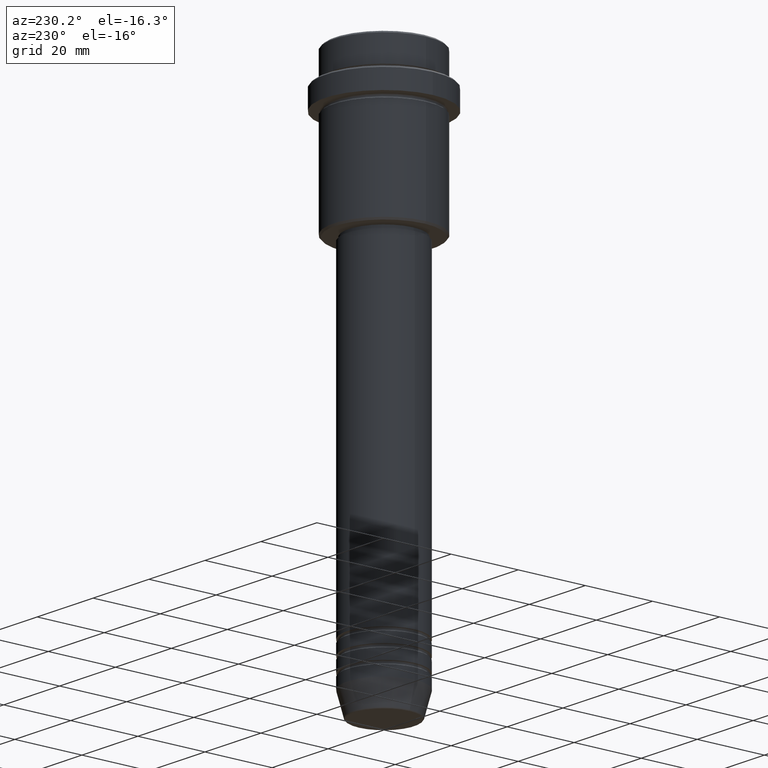
[diagram: clean part render]
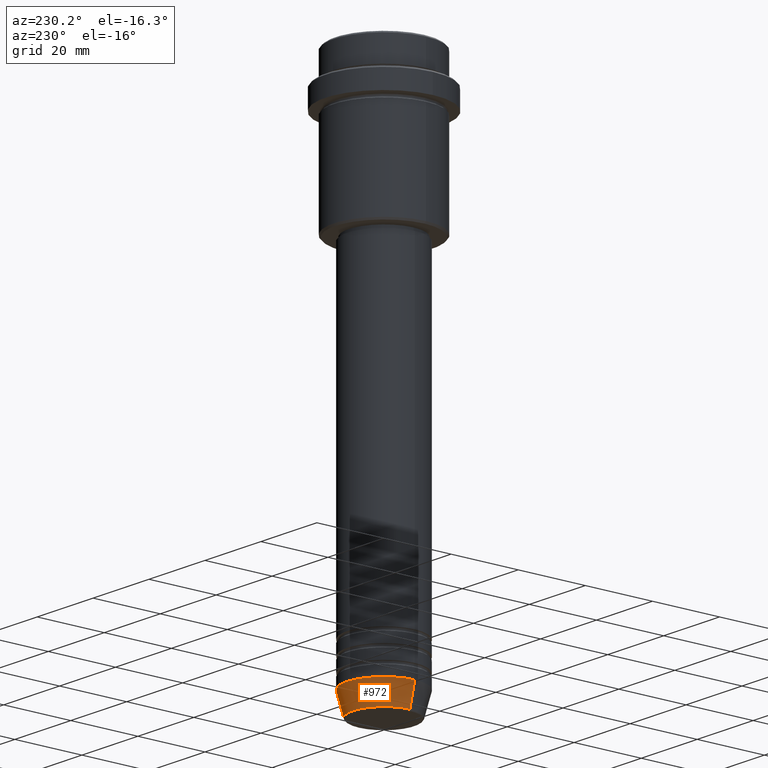
[diagram: same view with one face highlighted and labeled with its STEP entity id]
A machine part, auxiliary view. The second image highlights one B-rep face of the part: STEP entity #972.
In plain terms, the highlighted conical surface has half-angle 15 deg.
Its self-contained STEP definition (entity closure, byte-faithful):
#16 = DIRECTION ( 'NONE',  ( 1.000000000000000000, 0.000000000000000000, 0.000000000000000000 ) ) ;
#85 = ORIENTED_EDGE ( 'NONE', *, *, #982, .T. ) ;
#95 = DIRECTION ( 'NONE',  ( 1.000000000000000000, 0.000000000000000000, 0.000000000000000000 ) ) ;
#101 = LINE ( 'NONE', #989, #518 ) ;
#114 = EDGE_CURVE ( 'NONE', #877, #690, #1114, .T. ) ;
#196 = AXIS2_PLACEMENT_3D ( 'NONE', #295, #1286, #1044 ) ;
#201 = EDGE_LOOP ( 'NONE', ( #85, #1202, #523, #1287 ) ) ;
#217 = CONICAL_SURFACE ( 'NONE', #449, 11.00000000000000000, 0.2617993877991500740 ) ;
#295 = CARTESIAN_POINT ( 'NONE',  ( 0.000000000000000000, 0.000000000000000000, -159.6294095225512137 ) ) ;
#341 = VECTOR ( 'NONE', #633, 1000.000000000000000 ) ;
#344 = CARTESIAN_POINT ( 'NONE',  ( 0.000000000000000000, 0.000000000000000000, -153.0000000000000000 ) ) ;
#449 = AXIS2_PLACEMENT_3D ( 'NONE', #662, #1027, #95 ) ;
#462 = CARTESIAN_POINT ( 'NONE',  ( 9.223655072137194821, 0.000000000000000000, -159.6294095225512137 ) ) ;
#518 = VECTOR ( 'NONE', #552, 1000.000000000000000 ) ;
#523 = ORIENTED_EDGE ( 'NONE', *, *, #114, .F. ) ;
#552 = DIRECTION ( 'NONE',  ( 0.2588190451025213501, 0.000000000000000000, 0.9659258262890680902 ) ) ;
#633 = DIRECTION ( 'NONE',  ( -0.2588190451025213501, 3.169619151431772337E-17, 0.9659258262890680902 ) ) ;
#634 = VERTEX_POINT ( 'NONE', #1055 ) ;
#662 = CARTESIAN_POINT ( 'NONE',  ( 0.000000000000000000, 0.000000000000000000, -153.0000000000000000 ) ) ;
#682 = EDGE_CURVE ( 'NONE', #967, #877, #101, .T. ) ;
#690 = VERTEX_POINT ( 'NONE', #994 ) ;
#786 = DIRECTION ( 'NONE',  ( -0.000000000000000000, -0.000000000000000000, 1.000000000000000000 ) ) ;
#877 = VERTEX_POINT ( 'NONE', #1359 ) ;
#967 = VERTEX_POINT ( 'NONE', #462 ) ;
#972 = ADVANCED_FACE ( 'NONE', ( #1177 ), #217, .T. ) ;
#982 = EDGE_CURVE ( 'NONE', #967, #634, #1136, .T. ) ;
#989 = CARTESIAN_POINT ( 'NONE',  ( 11.00000000000000000, 0.000000000000000000, -153.0000000000000000 ) ) ;
#994 = CARTESIAN_POINT ( 'NONE',  ( -11.00000000000000000, 1.347111479062088405E-15, -153.0000000000000000 ) ) ;
#1027 = DIRECTION ( 'NONE',  ( -0.000000000000000000, -0.000000000000000000, 1.000000000000000000 ) ) ;
#1044 = DIRECTION ( 'NONE',  ( 1.000000000000000000, 0.000000000000000000, 0.000000000000000000 ) ) ;
#1055 = CARTESIAN_POINT ( 'NONE',  ( -9.223655072137194821, 1.238341722557647596E-15, -159.6294095225512137 ) ) ;
#1114 = CIRCLE ( 'NONE', #1323, 11.00000000000000000 ) ;
#1120 = EDGE_CURVE ( 'NONE', #634, #690, #1319, .T. ) ;
#1136 = CIRCLE ( 'NONE', #196, 9.223655072137194821 ) ;
#1177 = FACE_OUTER_BOUND ( 'NONE', #201, .T. ) ;
#1188 = CARTESIAN_POINT ( 'NONE',  ( -11.00000000000000000, 1.347111479062088405E-15, -153.0000000000000000 ) ) ;
#1202 = ORIENTED_EDGE ( 'NONE', *, *, #1120, .T. ) ;
#1286 = DIRECTION ( 'NONE',  ( -0.000000000000000000, -0.000000000000000000, 1.000000000000000000 ) ) ;
#1287 = ORIENTED_EDGE ( 'NONE', *, *, #682, .F. ) ;
#1319 = LINE ( 'NONE', #1188, #341 ) ;
#1323 = AXIS2_PLACEMENT_3D ( 'NONE', #344, #786, #16 ) ;
#1359 = CARTESIAN_POINT ( 'NONE',  ( 11.00000000000000000, 0.000000000000000000, -153.0000000000000000 ) ) ;